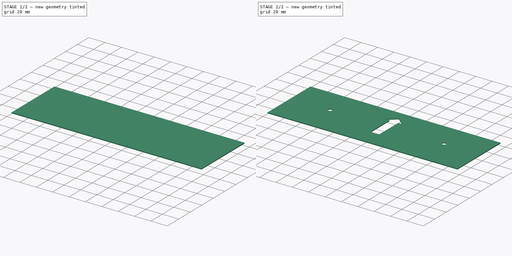
[diagram: build sequence overview — one tinted view per stage of 2, left to right]
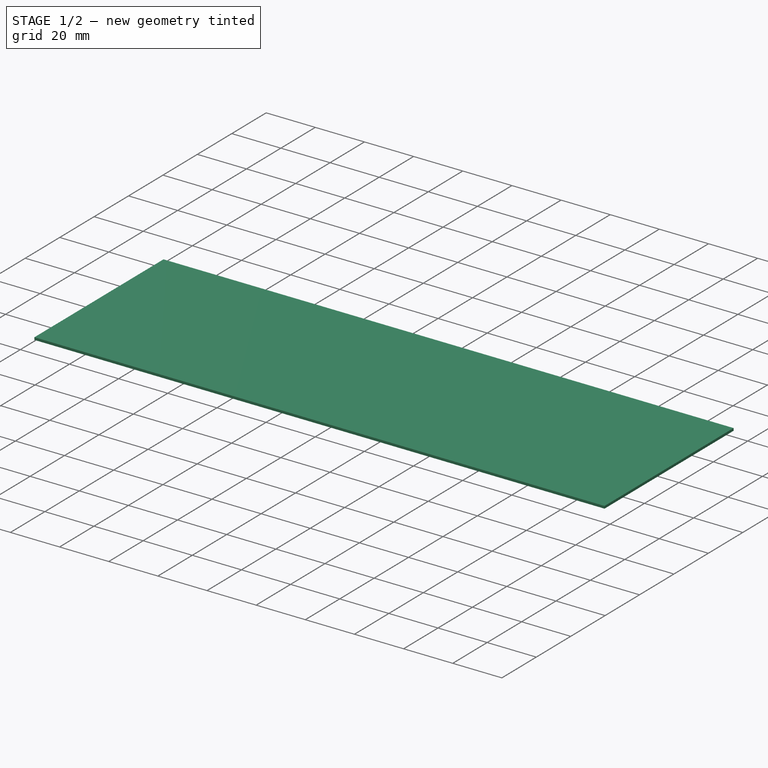
[diagram: stage 1 of 2 — iso view after this stage's code; geometry added in this stage tinted green]
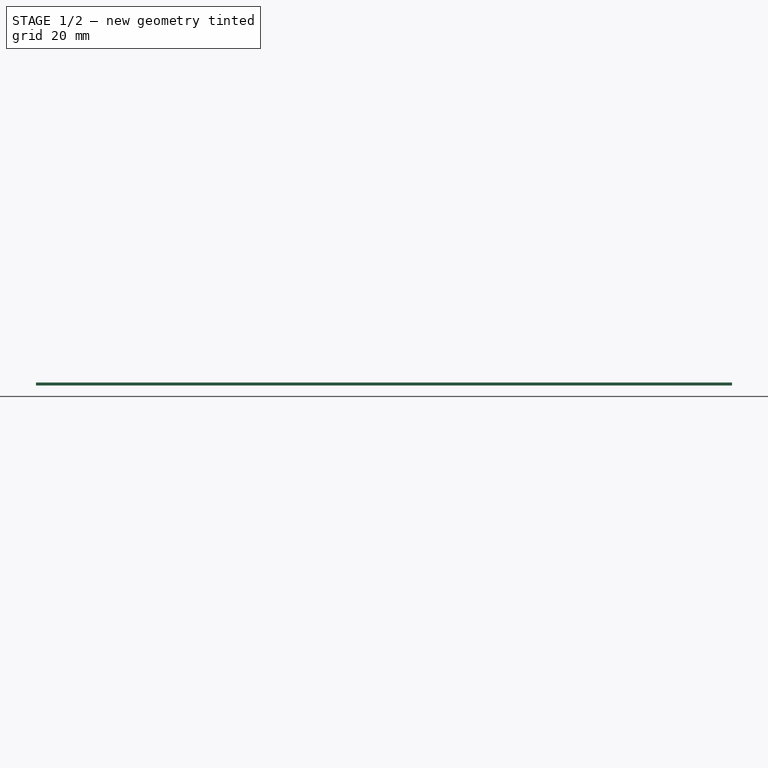
[diagram: stage 1 of 2 — front view after this stage's code; geometry added in this stage tinted green]
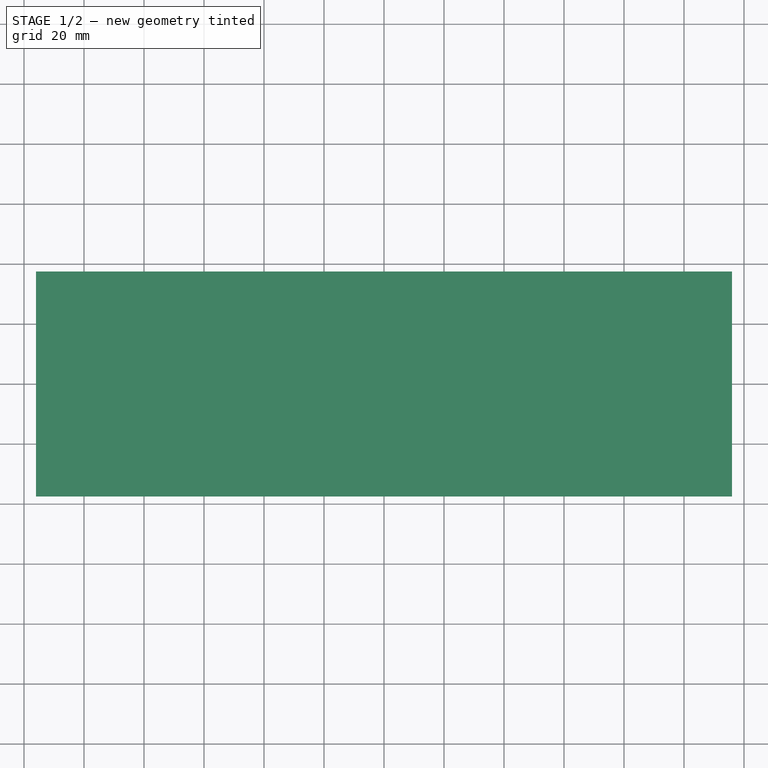
[diagram: stage 1 of 2 — top view after this stage's code; geometry added in this stage tinted green]
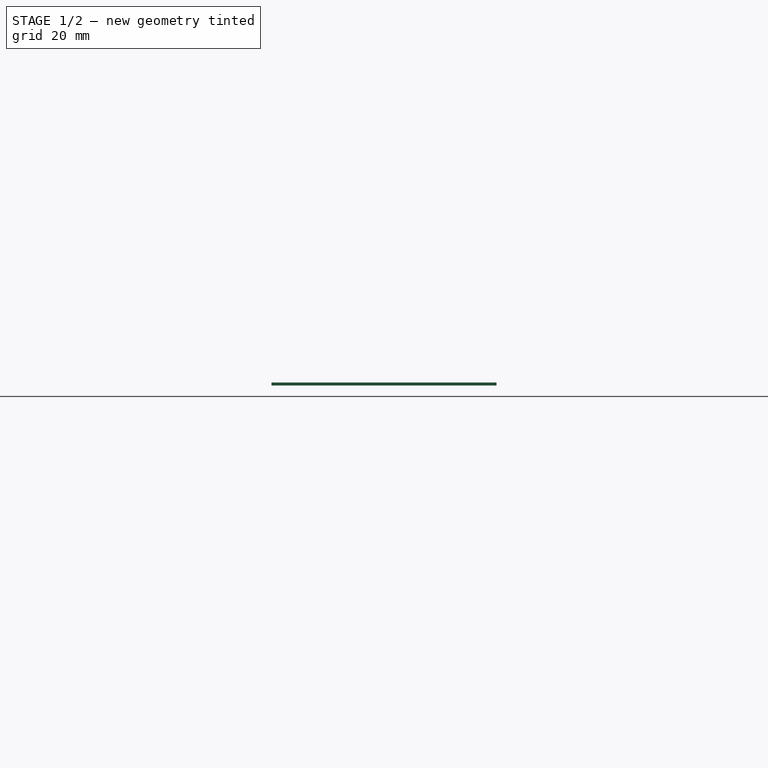
[diagram: stage 1 of 2 — right view after this stage's code; geometry added in this stage tinted green]
FCSTD DOCUMENT  (FreeCAD 0.21R33383 (Git))
Label: powerboard template
License: All rights reserved
LicenseURL: https://en.wikipedia.org/wiki/All_rights_reserved
objects: Sketcher::SketchObject×2, PartDesign::Pad×1, PartDesign::Pocket×1, PartDesign::Body×1
note: 7 computed .brp shape members not serialized (recipe doc carries the construction recipe); baked Part::Feature solids carry a one-line shape summary decoded from their .brp

FEATURE [Sketcher::SketchObject] Sketch
  FullyConstrained = true
  MapMode = 5
  Support = -> [XY_Plane]
  sketch-geometry (4):
    g0: LineSegment StartX=-116 StartY=37.5 StartZ=0 EndX=116 EndY=37.5 EndZ=0
    g1: LineSegment StartX=116 StartY=37.5 StartZ=0 EndX=116 EndY=-37.5 EndZ=0
    g2: LineSegment StartX=116 StartY=-37.5 StartZ=0 EndX=-116 EndY=-37.5 EndZ=0
    g3: LineSegment StartX=-116 StartY=-37.5 StartZ=0 EndX=-116 EndY=37.5 EndZ=0
  constraints (11):
    c: Coincident(g0,g1)
    c: Coincident(g1,g2)
    c: Coincident(g2,g3)
    c: Coincident(g3,g0)
    c: Horizontal(g0)
    c: Horizontal(g2)
    c: Vertical(g1)
    c: Vertical(g3)
    c: DistanceX(g0,g0) = 232
    c: DistanceY(g3,g3) = 75
    c: Symmetric(g0,g1,g-1)
FEATURE [PartDesign::Pad] Pad
  Direction = (0,0,1)
  Length = 1
  Length2 = 10
  Profile = -> Sketch
  ReferenceAxis = -> Sketch [N_Axis]
  Type = 0
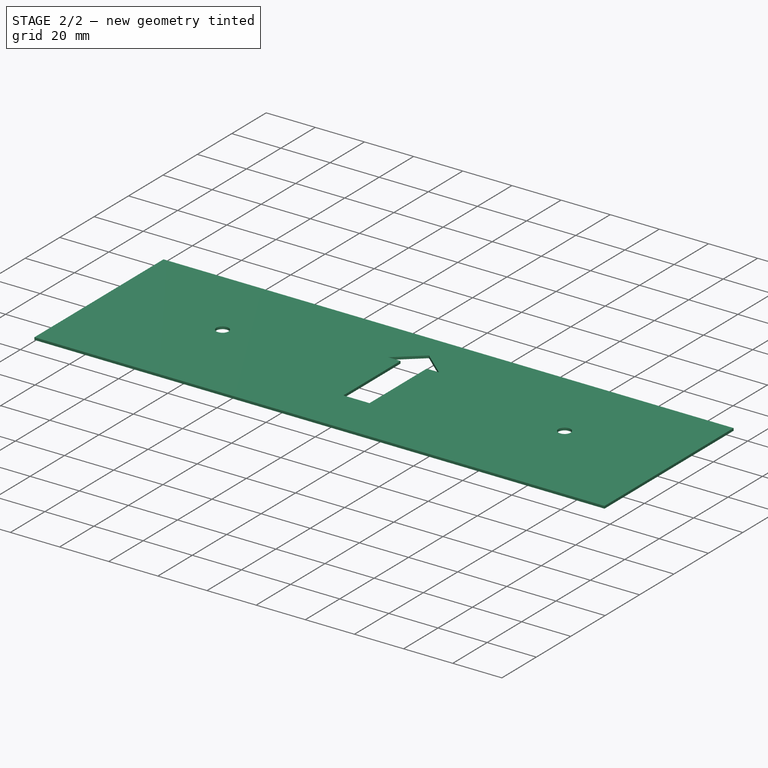
[diagram: stage 2 of 2 — iso view after this stage's code; geometry added in this stage tinted green]
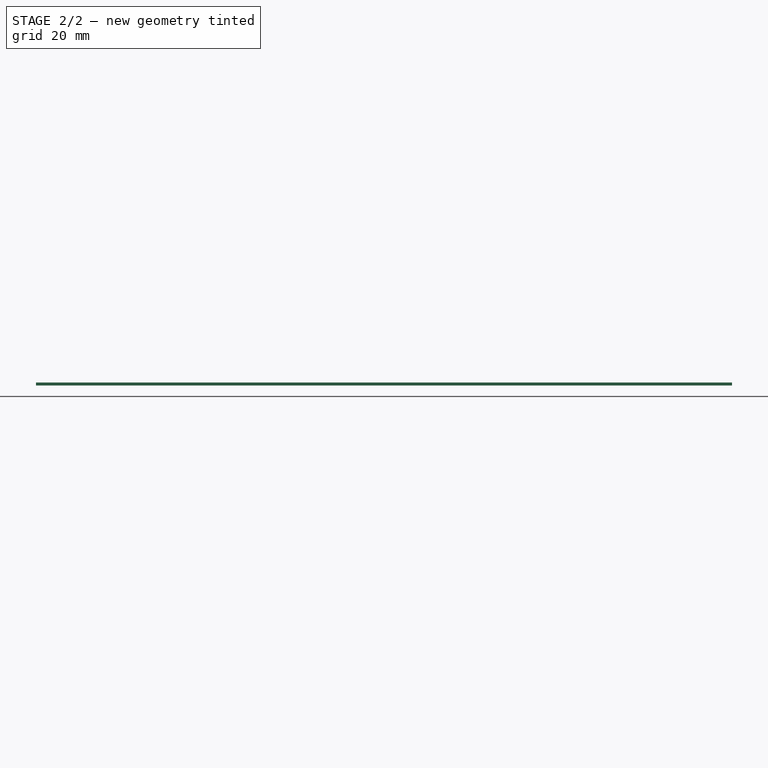
[diagram: stage 2 of 2 — front view after this stage's code; geometry added in this stage tinted green]
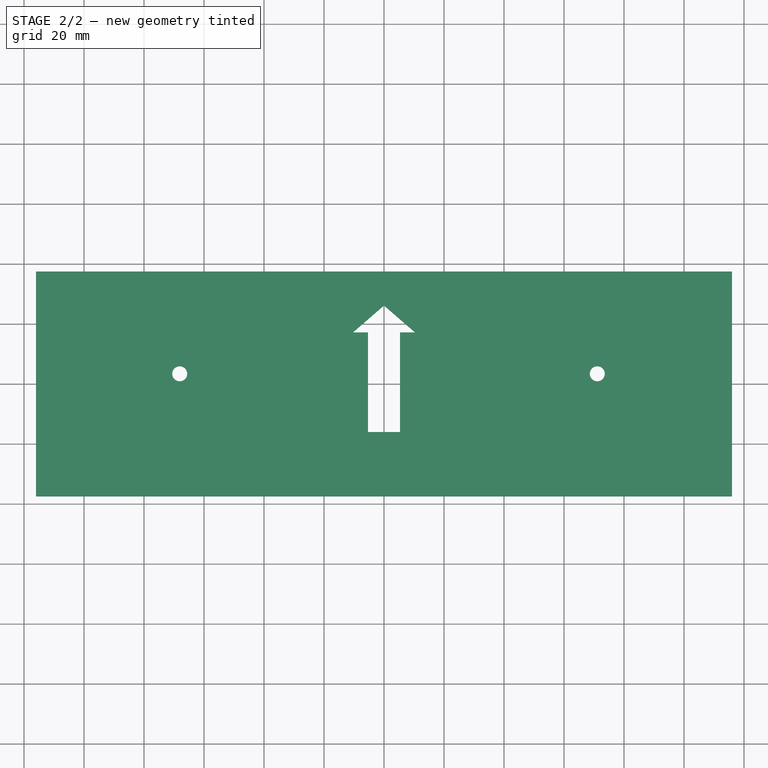
[diagram: stage 2 of 2 — top view after this stage's code; geometry added in this stage tinted green]
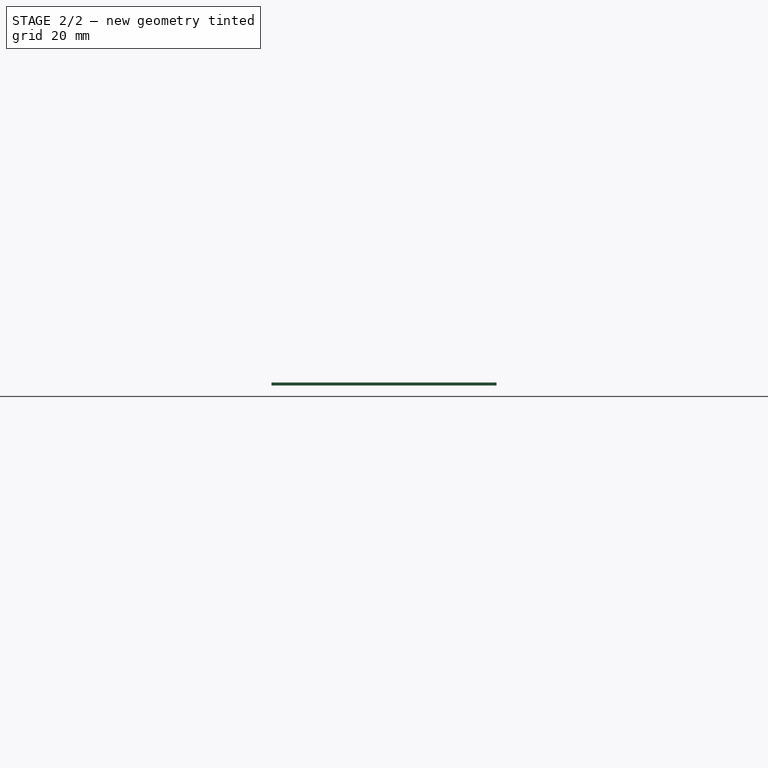
[diagram: stage 2 of 2 — right view after this stage's code; geometry added in this stage tinted green]
FEATURE [Sketcher::SketchObject] Sketch001
  ExternalGeometry = -> [Pad]
  FullyConstrained = false
  MapMode = 5
  Placement = pos=(0,0,1) rot=(0,0,1;0rad)
  Support = -> [Pad]
  sketch-geometry (9):
    g0: Circle CenterX=-68.1 CenterY=3.4 CenterZ=0 NormalX=0 NormalY=0 NormalZ=1 AngleXU=0 Radius=2.5
    g1: Circle CenterX=71.1 CenterY=3.4 CenterZ=0 NormalX=0 NormalY=0 NormalZ=1 AngleXU=0 Radius=2.5
    g2: LineSegment StartX=-5.32062 StartY=-16.0151 StartZ=0 EndX=-5.32062 EndY=17.2054 EndZ=0
    g3: LineSegment StartX=-5.32062 StartY=17.2054 StartZ=0 EndX=-10.3206 EndY=17.2054 EndZ=0
    g4: LineSegment StartX=-10.3206 StartY=17.2054 StartZ=0 EndX=0 EndY=26.1563 EndZ=0
    g5: LineSegment StartX=0 StartY=26.1563 StartZ=0 EndX=10.3206 EndY=17.2054 EndZ=0
    g6: LineSegment StartX=10.3206 StartY=17.2054 StartZ=0 EndX=5.32062 EndY=17.2054 EndZ=0
    g7: LineSegment StartX=5.32062 StartY=17.2054 StartZ=0 EndX=5.32062 EndY=-16.0151 EndZ=0
    g8: LineSegment StartX=5.32062 StartY=-16.0151 StartZ=0 EndX=-5.32062 EndY=-16.0151 EndZ=0
  constraints (22):
    c: Diameter(g1) = 5
    c: Equal(g0,g1)
    c: DistanceX(g-3,g0) = 47.9
    c: DistanceX(g1,g-4) = 44.9
    c: DistanceY(g0,g-3) = 34.1
    c: DistanceY(g1,g-4) = 34.1
    c: Vertical(g2)
    c: Coincident(g2,g3)
    c: Coincident(g3,g4)
    c: PointOnObject(g4,g-2)
    c: Coincident(g4,g5)
    c: Coincident(g5,g6)
    c: Coincident(g6,g7)
    c: Vertical(g7)
    c: Coincident(g7,g8)
    c: Coincident(g8,g2)
    c: Horizontal(g8)
    c: Horizontal(g3)
    c: Horizontal(g6)
    c: Equal(g6,g3)
    c: DistanceX(g3,g3) = 5
    c: Symmetric(g2,g6,g-2)
FEATURE [PartDesign::Pocket] Pocket
  BaseFeature = -> Pad
  Direction = (0,0,-1)
  Length = 5
  Length2 = 5
  Profile = -> Sketch001
  ReferenceAxis = -> Sketch001 [N_Axis]
  Type = 0
FEATURE [PartDesign::Body] Body
  Group = -> [Sketch,Pad,Sketch001,Pocket]
  Origin = -> Origin
  Tip = -> Pocket
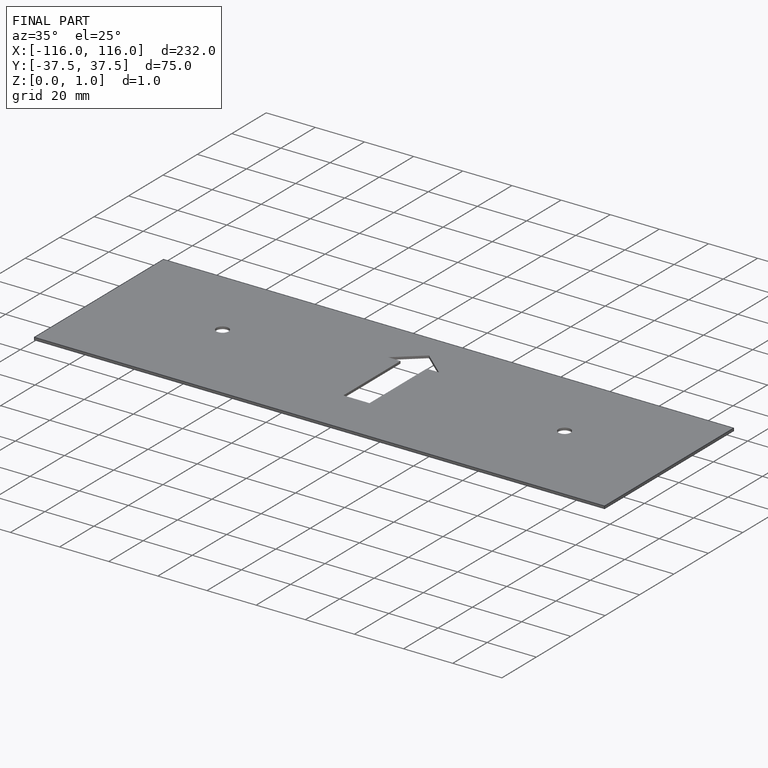
[diagram: finished part — iso view with bounding-box wireframe]
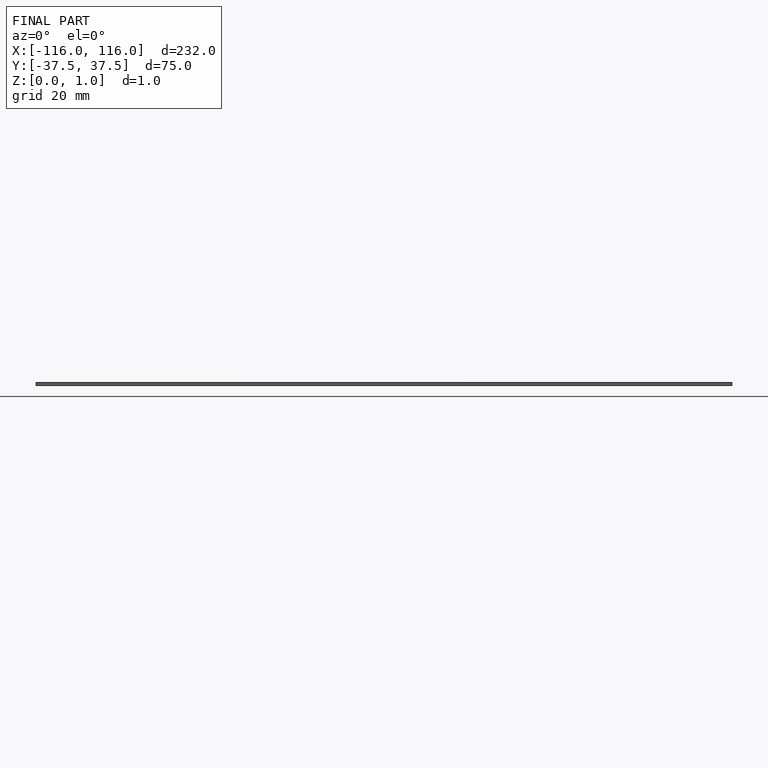
[diagram: finished part — front view with bounding-box wireframe]
